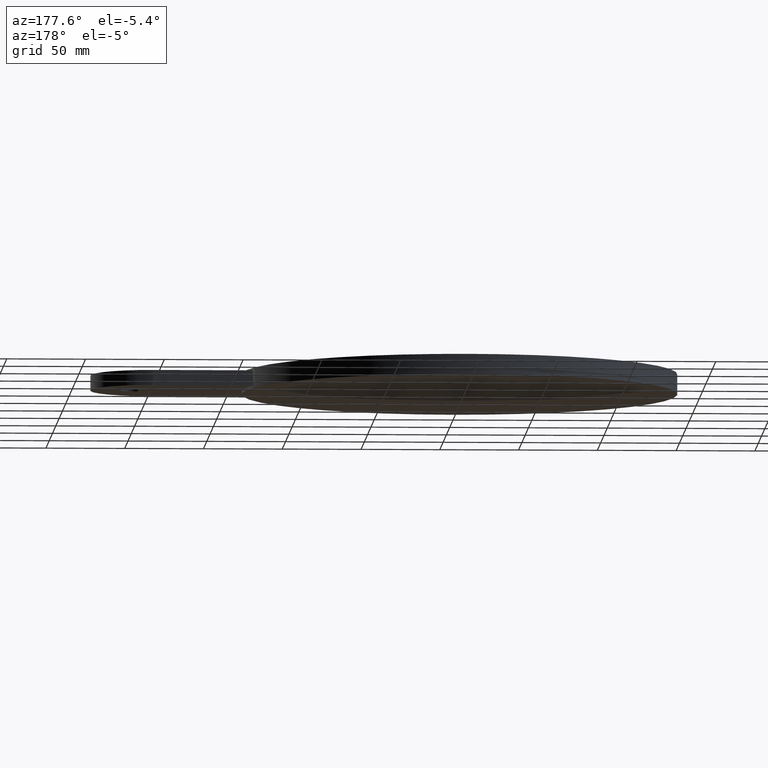
[diagram: clean part render]
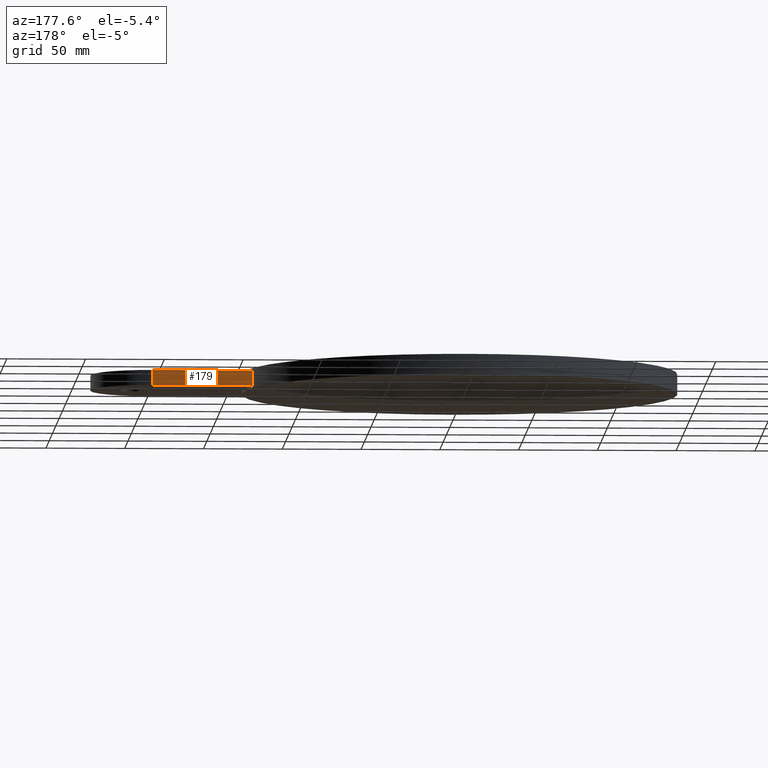
[diagram: same view with one face highlighted and labeled with its STEP entity id]
A machine part, auxiliary view. The second image highlights one B-rep face of the part: STEP entity #179.
In plain terms, the highlighted planar face has unit normal (0, 1, -0).
Its self-contained STEP definition (entity closure, byte-faithful):
#159=AXIS2_PLACEMENT_3D('Plane Axis2P3D',#156,#157,#158) ;
#91=CARTESIAN_POINT('Vertex',(5.2291108231,1.50000000001,-0.187500000001)) ;
#94=CARTESIAN_POINT('Line Origine',(6.4791108231,1.50000000001,-0.187500000001)) ;
#98=CARTESIAN_POINT('Vertex',(7.72911082311,1.50000000001,-0.187500000001)) ;
#137=CARTESIAN_POINT('Line Origine',(7.72911082311,1.50000000001,0.)) ;
#141=CARTESIAN_POINT('Vertex',(7.72911082311,1.50000000001,0.187500000001)) ;
#156=CARTESIAN_POINT('Axis2P3D Location',(7.72911082311,1.50000000001,0.)) ;
#161=CARTESIAN_POINT('Line Origine',(5.2291108231,1.50000000001,0.)) ;
#165=CARTESIAN_POINT('Vertex',(5.2291108231,1.50000000001,0.187500000001)) ;
#168=CARTESIAN_POINT('Line Origine',(6.4791108231,1.50000000001,0.187500000001)) ;
#95=DIRECTION('Vector Direction',(-0.0393700787402,0.,0.)) ;
#138=DIRECTION('Vector Direction',(0.,0.,0.0393700787402)) ;
#157=DIRECTION('Axis2P3D Direction',(0.,0.0393700787402,-0.)) ;
#158=DIRECTION('Axis2P3D XDirection',(-0.0393700787402,0.,0.)) ;
#162=DIRECTION('Vector Direction',(0.,0.,0.0393700787402)) ;
#169=DIRECTION('Vector Direction',(-0.0393700787402,0.,0.)) ;
#96=VECTOR('Line Direction',#95,0.0393700787402) ;
#139=VECTOR('Line Direction',#138,0.0393700787402) ;
#163=VECTOR('Line Direction',#162,0.0393700787402) ;
#170=VECTOR('Line Direction',#169,0.0393700787402) ;
#174=ORIENTED_EDGE('',*,*,#143,.F.) ;
#175=ORIENTED_EDGE('',*,*,#100,.T.) ;
#176=ORIENTED_EDGE('',*,*,#167,.T.) ;
#177=ORIENTED_EDGE('',*,*,#172,.F.) ;
#179=ADVANCED_FACE('PartBody',(#178),#160,.T.) ;
#100=EDGE_CURVE('',#99,#92,#97,.T.) ;
#143=EDGE_CURVE('',#99,#142,#140,.T.) ;
#167=EDGE_CURVE('',#92,#166,#164,.T.) ;
#172=EDGE_CURVE('',#142,#166,#171,.T.) ;
#173=EDGE_LOOP('',(#174,#175,#176,#177)) ;
#178=FACE_OUTER_BOUND('',#173,.T.) ;
#97=LINE('Line',#94,#96) ;
#140=LINE('Line',#137,#139) ;
#164=LINE('Line',#161,#163) ;
#171=LINE('Line',#168,#170) ;
#160=PLANE('',#159) ;
#92=VERTEX_POINT('',#91) ;
#99=VERTEX_POINT('',#98) ;
#142=VERTEX_POINT('',#141) ;
#166=VERTEX_POINT('',#165) ;